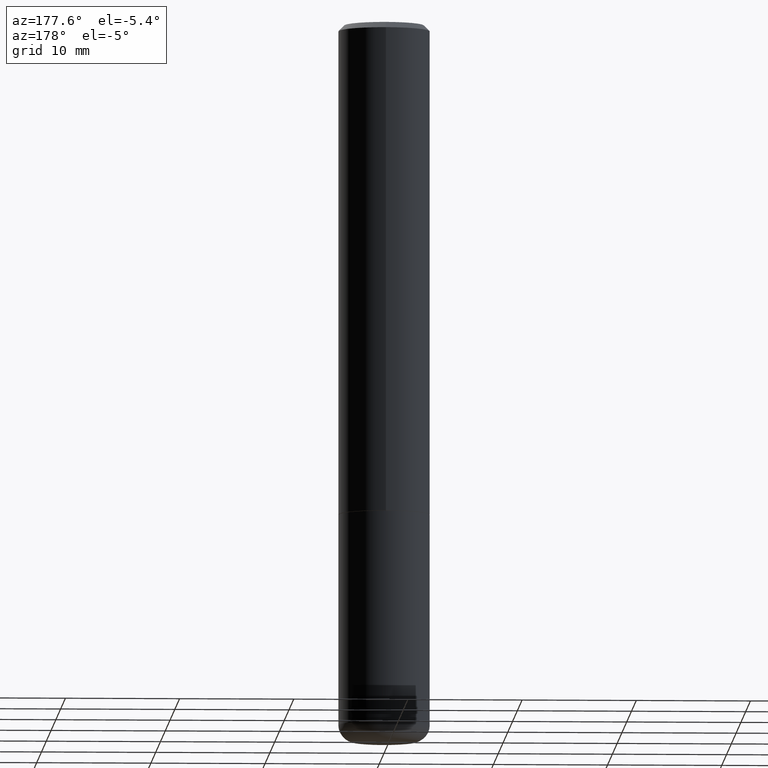
[diagram: clean part render]
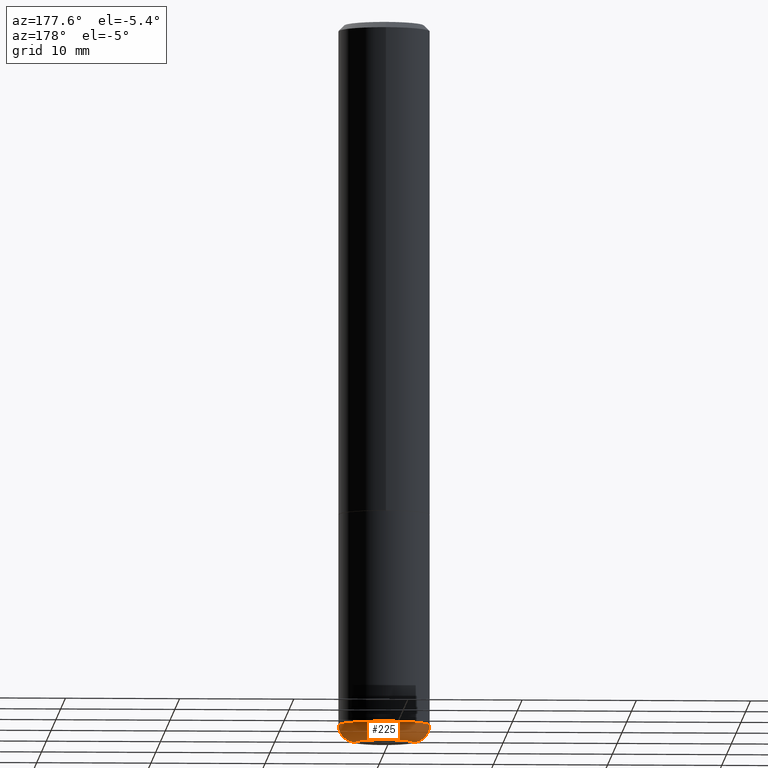
[diagram: same view with one face highlighted and labeled with its STEP entity id]
A machine part, auxiliary view. The second image highlights one B-rep face of the part: STEP entity #225.
In plain terms, the highlighted toroidal blend (fillet) surface has major radius 2.4994 mm and minor (blend) radius 1.5011 mm.
Its self-contained STEP definition (entity closure, byte-faithful):
#9 = AXIS2_PLACEMENT_3D ( 'NONE', #332, #53, #176 ) ;
#11 = DIRECTION ( 'NONE',  ( -2.445468806185136597E-29, 3.491481338843145583E-15, 1.000000000000000000 ) ) ;
#15 = FACE_OUTER_BOUND ( 'NONE', #84, .T. ) ;
#26 = VERTEX_POINT ( 'NONE', #352 ) ;
#31 = AXIS2_PLACEMENT_3D ( 'NONE', #367, #244, #206 ) ;
#39 = AXIS2_PLACEMENT_3D ( 'NONE', #366, #144, #111 ) ;
#42 = EDGE_CURVE ( 'NONE', #171, #149, #355, .T. ) ;
#50 = ORIENTED_EDGE ( 'NONE', *, *, #42, .T. ) ;
#53 = DIRECTION ( 'NONE',  ( -2.445468806185136597E-29, 3.491481338843145583E-15, 1.000000000000000000 ) ) ;
#66 = ORIENTED_EDGE ( 'NONE', *, *, #336, .F. ) ;
#84 = EDGE_LOOP ( 'NONE', ( #234, #50, #66, #139 ) ) ;
#101 = CARTESIAN_POINT ( 'NONE',  ( -0.09840000000000000135, -7.647608460764791890E-15, -2.480300000000000171 ) ) ;
#111 = DIRECTION ( 'NONE',  ( 1.000000000000000000, -6.982962677686269866E-15, 4.883557194083114022E-29 ) ) ;
#125 = DIRECTION ( 'NONE',  ( -1.000000000000000000, 7.105427357600997914E-15, 0.000000000000000000 ) ) ;
#130 = EDGE_CURVE ( 'NONE', #351, #171, #133, .T. ) ;
#133 = CIRCLE ( 'NONE', #241, 0.09840000000000000135 ) ;
#139 = ORIENTED_EDGE ( 'NONE', *, *, #278, .F. ) ;
#142 = CARTESIAN_POINT ( 'NONE',  ( 0.09840000000000000135, -9.347044692216982806E-15, -2.480300000000000171 ) ) ;
#144 = DIRECTION ( 'NONE',  ( -2.445468806185136597E-29, 3.491481338843145583E-15, 1.000000000000000000 ) ) ;
#149 = VERTEX_POINT ( 'NONE', #265 ) ;
#153 = CIRCLE ( 'NONE', #9, 0.1575000000000000289 ) ;
#171 = VERTEX_POINT ( 'NONE', #101 ) ;
#176 = DIRECTION ( 'NONE',  ( 1.000000000000000000, -6.982962677686267499E-15, 0.000000000000000000 ) ) ;
#206 = DIRECTION ( 'NONE',  ( 1.000000000000000000, -6.982962677686266711E-15, 0.000000000000000000 ) ) ;
#208 = AXIS2_PLACEMENT_3D ( 'NONE', #314, #418, #125 ) ;
#225 = ADVANCED_FACE ( 'NONE', ( #15 ), #280, .T. ) ;
#227 = DIRECTION ( 'NONE',  ( 1.000000000000000000, -6.982962677686261977E-15, 0.000000000000000000 ) ) ;
#234 = ORIENTED_EDGE ( 'NONE', *, *, #130, .T. ) ;
#241 = AXIS2_PLACEMENT_3D ( 'NONE', #324, #11, #227 ) ;
#244 = DIRECTION ( 'NONE',  ( -6.982962677686266711E-15, -1.000000000000000000, 3.491481338843145583E-15 ) ) ;
#265 = CARTESIAN_POINT ( 'NONE',  ( -0.1575000000000000011, -7.334469808784867333E-15, -2.421200000000000241 ) ) ;
#278 = EDGE_CURVE ( 'NONE', #351, #26, #377, .T. ) ;
#280 = TOROIDAL_SURFACE ( 'NONE', #39, 0.09840000000000000135, 0.05909999999999997200 ) ;
#314 = CARTESIAN_POINT ( 'NONE',  ( -0.09840000000000000135, -7.754400565619087626E-15, -2.421200000000000241 ) ) ;
#324 = CARTESIAN_POINT ( 'NONE',  ( 6.065496279980994755E-29, -8.659921164732655335E-15, -2.480300000000000171 ) ) ;
#332 = CARTESIAN_POINT ( 'NONE',  ( 5.920969073535453422E-29, -8.453574617607024936E-15, -2.421200000000000241 ) ) ;
#336 = EDGE_CURVE ( 'NONE', #26, #149, #153, .T. ) ;
#351 = VERTEX_POINT ( 'NONE', #142 ) ;
#352 = CARTESIAN_POINT ( 'NONE',  ( 0.1575000000000000011, -9.553391239342613205E-15, -2.421200000000000241 ) ) ;
#355 = CIRCLE ( 'NONE', #208, 0.05909999999999995812 ) ;
#366 = CARTESIAN_POINT ( 'NONE',  ( 5.920969073535453422E-29, -8.453574617607024936E-15, -2.421200000000000241 ) ) ;
#367 = CARTESIAN_POINT ( 'NONE',  ( 0.09840000000000000135, -9.140698145091353984E-15, -2.421200000000000241 ) ) ;
#377 = CIRCLE ( 'NONE', #31, 0.05909999999999995812 ) ;
#418 = DIRECTION ( 'NONE',  ( 7.105427357601001859E-15, 1.000000000000000000, -3.491481338843145583E-15 ) ) ;